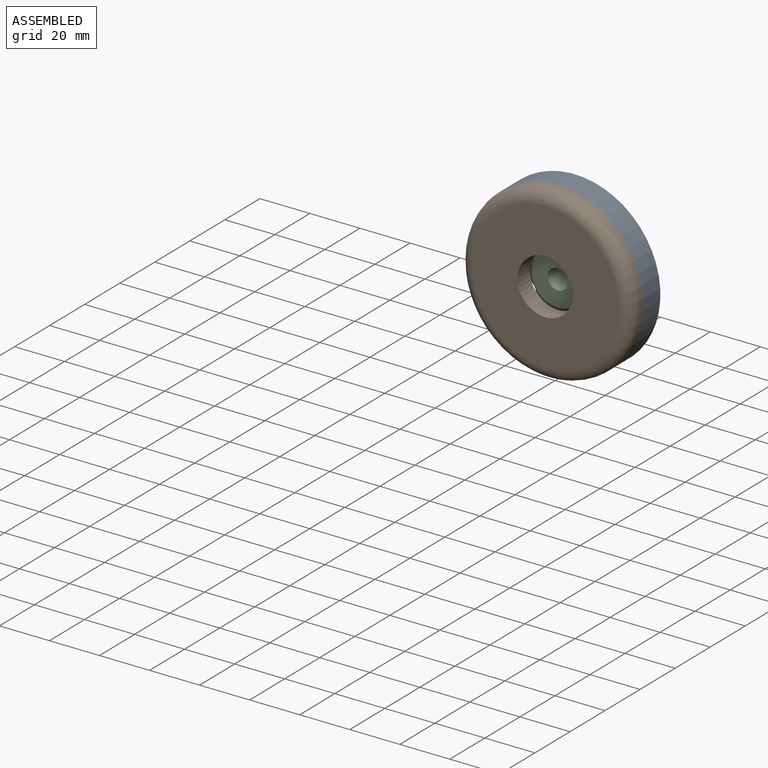
[diagram: assembled view]
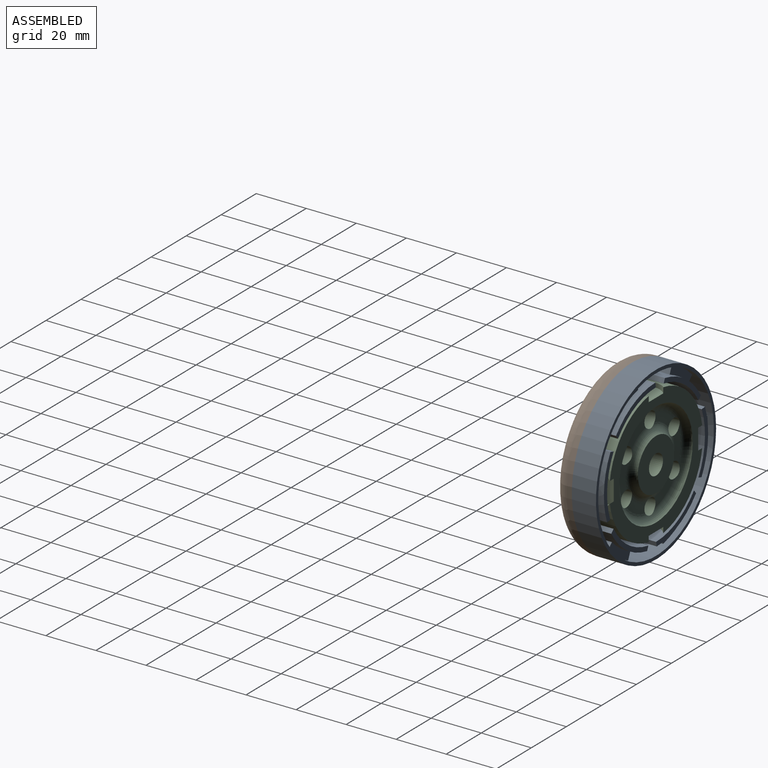
[diagram: assembled view, second angle]
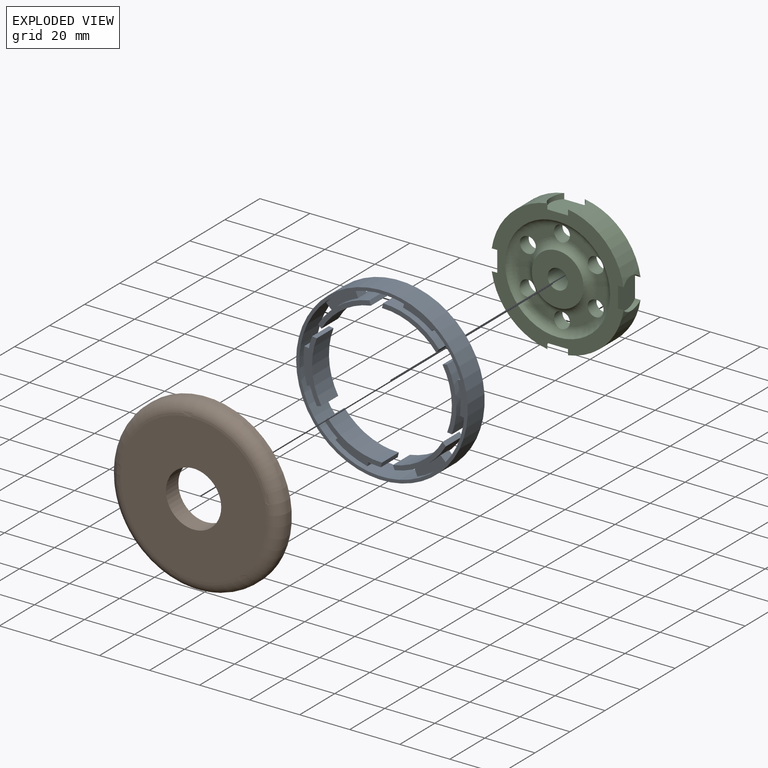
[diagram: exploded view]
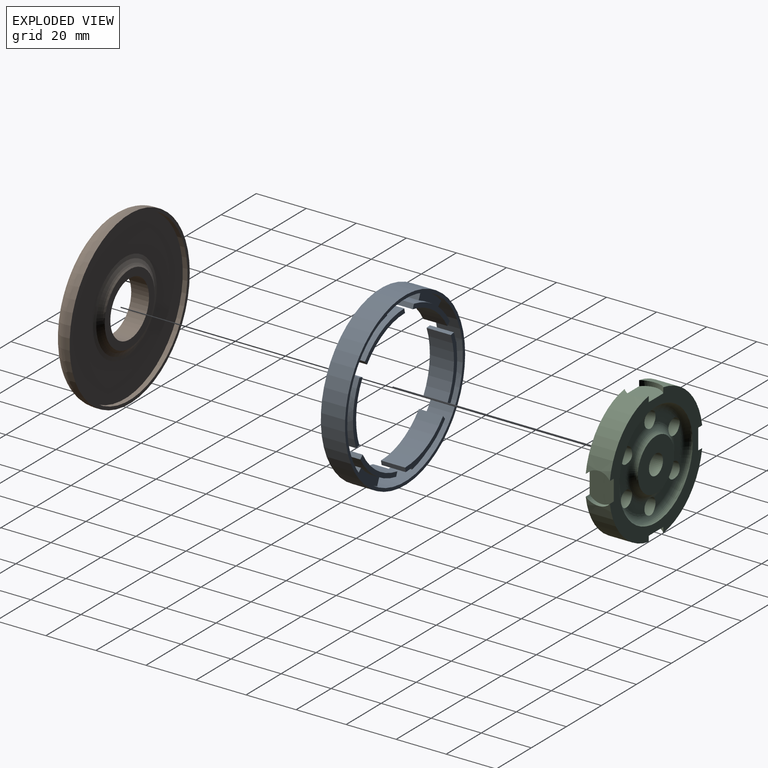
[diagram: exploded view, second angle]
ASSEMBLY  parts=3 mates=3
PART A: 64 faces, bbox 68.6x9.7x68.6 mm
  f0: plane 9.65x1.37mm, normal (-0.67,0,0.74), area 17.9mm2, adj f32,f49,f50,f60
  f1: plane 9.65x1.77mm, normal (0.3,0,0.95), area 17.9mm2, adj f36,f51,f52,f61
  f2: plane 9.65x1.81mm, normal (0.98,0,0.21), area 17.9mm2, adj f41,f53,f54,f62
  f3: plane 9.65x1.37mm, normal (0.67,0,-0.74), area 17.9mm2, adj f20,f55,f56,f63
  f4: plane 9.65x1.77mm, normal (-0.3,0,-0.95), area 17.9mm2, adj f24,f45,f46,f58
  f5: plane 9.65x1.81mm, normal (-0.98,0,-0.21), area 17.9mm2, adj f28,f47,f48,f59
  f6: plane 13.2x9.47mm, normal (0,1,0), area 44.2mm2, adj f19,f22,f39,f55
  f7: plane 14.1x3.96mm, normal (0,1,0), area 44.2mm2, adj f18,f39,f40,f53
  f8: plane 13.2x9.47mm, normal (0,1,0), area 44.2mm2, adj f35,f38,f39,f51
  f9: plane 13.2x9.47mm, normal (0,1,0), area 44.2mm2, adj f31,f34,f39,f49
  f10: plane 14.1x3.96mm, normal (0,1,0), area 44.2mm2, adj f27,f30,f39,f47
  f11: plane 13.2x9.47mm, normal (0,1,0), area 44.2mm2, adj f23,f26,f39,f45
  f12: plane 13.2x9.47mm, normal (0,-1,0), area 44.2mm2, adj f19,f22,f39,f55
  f13: plane 14.1x3.96mm, normal (0,-1,0), area 44.2mm2, adj f18,f39,f40,f53
  f14: plane 13.2x9.47mm, normal (0,-1,0), area 44.2mm2, adj f35,f38,f39,f51
  f15: plane 13.2x9.47mm, normal (0,-1,0), area 44.2mm2, adj f31,f34,f39,f49
  f16: plane 14.1x3.96mm, normal (0,-1,0), area 44.2mm2, adj f27,f30,f39,f47
  f17: plane 13.2x9.47mm, normal (0,-1,0), area 44.2mm2, adj f23,f26,f39,f45
  f18: plane 4.83x3.2mm, normal (-0.98,0,0.21), area 15.8mm2, adj f7,f13,f39,f53
  f19: plane 4.83x2.42mm, normal (0.67,0,-0.74), area 15.8mm2, adj f6,f12,f39,f55
  f20: cylinder r=27.94mm len=20.8mm, axis (0,1,0), area 239.7mm2, adj f3,f21,f56,f63
  f21: plane 9.65x1.77mm, normal (-0.3,0,0.95), area 17.9mm2, adj f20,f55,f56,f63
  f22: plane 4.83x3.12mm, normal (-0.3,0,0.95), area 15.8mm2, adj f6,f12,f39,f55
  f23: plane 4.83x3.12mm, normal (-0.3,0,-0.95), area 15.8mm2, adj f11,f17,f39,f45
  f24: cylinder r=27.94mm len=20.8mm, axis (0,1,0), area 239.7mm2, adj f4,f25,f46,f58
  f25: plane 9.65x1.37mm, normal (0.67,0,0.74), area 17.9mm2, adj f24,f45,f46,f58
  f26: plane 4.83x2.42mm, normal (0.67,0,0.74), area 15.8mm2, adj f11,f17,f39,f45
  f27: plane 4.83x3.2mm, normal (-0.98,0,-0.21), area 15.8mm2, adj f10,f16,f39,f47
  f28: cylinder r=27.94mm len=24.02mm, axis (0,1,0), area 239.7mm2, adj f5,f29,f48,f59
  f29: plane 9.65x1.81mm, normal (0.98,0,-0.21), area 17.9mm2, adj f28,f47,f48,f59
  f30: plane 4.83x3.2mm, normal (0.98,0,-0.21), area 15.8mm2, adj f10,f16,f39,f47
  f31: plane 4.83x2.42mm, normal (-0.67,0,0.74), area 15.8mm2, adj f9,f15,f39,f49
  f32: cylinder r=27.94mm len=20.8mm, axis (0,1,0), area 239.7mm2, adj f0,f33,f50,f60
  f33: plane 9.65x1.77mm, normal (0.3,0,-0.95), area 17.9mm2, adj f32,f49,f50,f60
  f34: plane 4.83x3.12mm, normal (0.3,0,-0.95), area 15.8mm2, adj f9,f15,f39,f49
  f35: plane 4.83x3.12mm, normal (0.3,0,0.95), area 15.8mm2, adj f8,f14,f39,f51
  f36: cylinder r=27.94mm len=20.8mm, axis (0,1,0), area 239.7mm2, adj f1,f37,f52,f61
  f37: plane 9.65x1.37mm, normal (-0.67,0,-0.74), area 17.9mm2, adj f36,f51,f52,f61
  f38: plane 4.83x2.42mm, normal (-0.67,0,-0.74), area 15.8mm2, adj f8,f14,f39,f51
  f39: cylinder r=33.02mm len=66.04mm, axis (0,1,0), area 1591.2mm2, adj f6,f7,f8,f9,f10,f11,f12,f13
  f40: plane 4.83x3.2mm, normal (0.98,0,0.21), area 15.8mm2, adj f7,f13,f39,f53
  f41: cylinder r=27.94mm len=24.02mm, axis (0,1,0), area 239.7mm2, adj f2,f42,f54,f62
  f42: plane 9.65x1.81mm, normal (-0.98,0,0.21), area 17.9mm2, adj f41,f53,f54,f62
  f43: cylinder r=34.29mm len=68.58mm, axis (0,1,0), area 2079.5mm2, adj f44,f57
  f44: plane 68.58x68.58mm, normal (0,-1,0), area 268.6mm2, adj f39,f43
  f45: cylinder r=29.75mm len=21.49mm, axis (0,1,0), area 185.3mm2, adj f4,f11,f17,f23,f25,f26,f46,f58
  f46: plane 22.05x13.78mm, normal (0,-1,0), area 45.6mm2, adj f4,f24,f25,f45
  f47: cylinder r=29.75mm len=24.81mm, axis (0,1,0), area 185.3mm2, adj f5,f10,f16,f27,f29,f30,f48,f59
  f48: plane 24.81x4.52mm, normal (0,-1,0), area 45.6mm2, adj f5,f28,f29,f47
  f49: cylinder r=29.75mm len=21.49mm, axis (0,1,0), area 185.3mm2, adj f0,f9,f15,f31,f33,f34,f50,f60
  f50: plane 22.05x13.78mm, normal (0,-1,0), area 45.6mm2, adj f0,f32,f33,f49
  f51: cylinder r=29.75mm len=21.49mm, axis (0,1,0), area 185.3mm2, adj f1,f8,f14,f35,f37,f38,f52,f61
  f52: plane 22.05x13.78mm, normal (0,-1,0), area 45.6mm2, adj f1,f36,f37,f51
  f53: cylinder r=29.75mm len=24.81mm, axis (0,1,0), area 185.3mm2, adj f2,f7,f13,f18,f40,f42,f54,f62
  f54: plane 24.81x4.52mm, normal (0,-1,0), area 45.6mm2, adj f2,f41,f42,f53
  f55: cylinder r=29.75mm len=21.49mm, axis (0,1,0), area 185.3mm2, adj f3,f6,f12,f19,f21,f22,f56,f63
  f56: plane 22.05x13.78mm, normal (0,-1,0), area 45.6mm2, adj f3,f20,f21,f55
  f57: plane 68.58x68.58mm, normal (0,1,0), area 268.6mm2, adj f39,f43
  f58: plane 22.05x13.78mm, normal (0,1,0), area 45.6mm2, adj f4,f24,f25,f45
  f59: plane 24.81x4.52mm, normal (0,1,0), area 45.6mm2, adj f5,f28,f29,f47
  f60: plane 22.05x13.78mm, normal (0,1,0), area 45.6mm2, adj f0,f32,f33,f49
  f61: plane 22.05x13.78mm, normal (0,1,0), area 45.6mm2, adj f1,f36,f37,f51
  f62: plane 24.81x4.52mm, normal (0,1,0), area 45.6mm2, adj f2,f41,f42,f53
  f63: plane 22.05x13.78mm, normal (0,1,0), area 45.6mm2, adj f3,f20,f21,f55
PART B: 9 faces, bbox 74.2x10.3x74.2 mm
  f0: cylinder r=33.02mm len=66.04mm, axis (0,1,0), area 395.2mm2, adj f2,f5
  f1: cylinder r=34.29mm len=68.58mm, axis (0,1,0), area 437.8mm2, adj f2,f7
  f2: plane 68.58x68.58mm, normal (0,1,0), area 268.6mm2, adj f0,f1
  f3: cylinder r=11.05mm len=22.1mm, axis (0,1,0), area 493.7mm2, adj f4,f6
  f4: plane 58.42x58.42mm, normal (0,-1,0), area 2297mm2, adj f3,f7
  f5: plane 66.04x66.04mm, normal (0,1,0), area 2385.9mm2, adj f0,f8
  f6: plane 28.45x28.45mm, normal (0,1,0), area 252.1mm2, adj f3,f8
  f7: torus R=29.21mm, axis (0,-1,0), area 1626.7mm2, adj f1,f4
  f8: torus R=18.19mm, axis (0,-1,0), area 459.2mm2, adj f5,f6
PART C: 43 faces, bbox 52.7x12.4x52.7 mm
  f0: plane 11.01x8.2mm, normal (0,-1,0), area 36.5mm2, adj f37,f38,f41,f42
  f1: plane 12.37x4.33mm, normal (0,-1,0), area 36.5mm2, adj f36,f37,f41,f42
  f2: plane 11.01x8.2mm, normal (0,-1,0), area 36.5mm2, adj f35,f36,f41,f42
  f3: plane 11.01x8.2mm, normal (0,-1,0), area 36.5mm2, adj f34,f35,f41,f42
  f4: plane 12.37x4.33mm, normal (0,-1,0), area 36.5mm2, adj f33,f34,f41,f42
  f5: plane 11.01x8.2mm, normal (0,1,0), area 36.5mm2, adj f35,f36,f39,f40
  f6: plane 12.37x4.33mm, normal (0,1,0), area 36.5mm2, adj f36,f37,f39,f40
  f7: plane 11.01x8.2mm, normal (0,1,0), area 36.5mm2, adj f37,f38,f39,f40
  f8: plane 11.01x8.2mm, normal (0,1,0), area 36.5mm2, adj f33,f38,f39,f40
  f9: plane 12.37x4.33mm, normal (0,1,0), area 36.5mm2, adj f33,f34,f39,f40
  f10: plane 20.7x20.7mm, normal (0,1,0), area 286.3mm2, adj f30,f39
  f11: plane 20.7x20.7mm, normal (0,-1,0), area 286.3mm2, adj f30,f41
  f12: cylinder r=26.67mm len=22.22mm, axis (0,1,0), area 294mm2, adj f16,f17,f24,f29
  f13: cylinder r=26.67mm len=22.22mm, axis (0,1,0), area 294mm2, adj f16,f17,f21,f26
  f14: cylinder r=26.67mm len=22.22mm, axis (0,1,0), area 294mm2, adj f16,f17,f18,f23
  f15: cylinder r=26.67mm len=22.22mm, axis (0,1,0), area 294mm2, adj f16,f17,f20,f27
  f16: plane 52.7x52.7mm, normal (0,-1,0), area 774.7mm2, adj f12,f13,f14,f15,f18,f19,f20,f21
  f17: plane 52.7x52.7mm, normal (0,1,0), area 774.7mm2, adj f12,f13,f14,f15,f18,f19,f20,f21
  f18: cylinder r=6.35mm len=9.65mm, axis (0,0,1), area 21.3mm2, adj f14,f16,f17,f19
  f19: plane 12.7x9.65mm, normal (0,0,1), area 109.5mm2, adj f16,f17,f18,f20
  f20: cylinder r=6.35mm len=9.65mm, axis (0,0,1), area 21.3mm2, adj f15,f16,f17,f19
  f21: cylinder r=6.35mm len=9.65mm, axis (1,0,0), area 21.3mm2, adj f13,f16,f17,f22
  f22: plane 12.7x9.65mm, normal (1,0,0), area 109.5mm2, adj f16,f17,f21,f23
  f23: cylinder r=6.35mm len=9.65mm, axis (1,0,0), area 21.3mm2, adj f14,f16,f17,f22
  f24: cylinder r=6.35mm len=9.65mm, axis (0,0,-1), area 21.3mm2, adj f12,f16,f17,f25
  f25: plane 12.7x9.65mm, normal (0,0,-1), area 109.5mm2, adj f16,f17,f24,f26
  f26: cylinder r=6.35mm len=9.65mm, axis (0,0,-1), area 21.3mm2, adj f13,f16,f17,f25
  f27: cylinder r=6.35mm len=9.65mm, axis (-1,0,0), area 21.3mm2, adj f15,f16,f17,f28
  f28: plane 12.7x9.65mm, normal (-1,0,0), area 109.5mm2, adj f16,f17,f27,f29
  f29: cylinder r=6.35mm len=9.65mm, axis (-1,0,0), area 21.3mm2, adj f12,f16,f17,f28
  f30: cylinder r=4mm len=9.65mm, axis (0,-1,0), area 242.6mm2, adj f10,f11
  f31: plane 11.01x8.2mm, normal (0,-1,0), area 36.5mm2, adj f33,f38,f41,f42
  f32: plane 11.01x8.2mm, normal (0,1,0), area 36.5mm2, adj f34,f35,f39,f40
  f33: cylinder r=3.17mm len=6.35mm, axis (0,-1,0), area 99.8mm2, adj f4,f8,f9,f31,f39,f40,f41,f42
  f34: cylinder r=3.17mm len=6.35mm, axis (0,-1,0), area 99.8mm2, adj f3,f4,f9,f32,f39,f40,f41,f42
  f35: cylinder r=3.17mm len=6.35mm, axis (0,-1,0), area 99.8mm2, adj f2,f3,f5,f32,f39,f40,f41,f42
  f36: cylinder r=3.17mm len=6.35mm, axis (0,-1,0), area 99.8mm2, adj f1,f2,f5,f6,f39,f40,f41,f42
  f37: cylinder r=3.17mm len=6.35mm, axis (0,-1,0), area 99.8mm2, adj f0,f1,f6,f7,f39,f40,f41,f42
  f38: cylinder r=3.17mm len=6.35mm, axis (0,-1,0), area 99.8mm2, adj f0,f7,f8,f31,f39,f40,f41,f42
  f39: torus R=13.89mm, axis (0,1,0), area 310.1mm2, adj f5,f6,f7,f8,f9,f10,f32,f33
  f40: torus R=17.41mm, axis (0,-1,0), area 521.5mm2, adj f5,f6,f7,f8,f9,f17,f32,f33
  f41: torus R=13.89mm, axis (0,-1,0), area 310.1mm2, adj f0,f1,f2,f3,f4,f11,f31,f33
  f42: torus R=17.41mm, axis (0,1,0), area 521.5mm2, adj f0,f1,f2,f3,f4,f16,f31,f33
PLACE A rot(axis=(0,1,0),25.5deg) t=(-0.32,-13.22,0.97)mm
PLACE B rot(axis=(0,1,0),25.5deg) t=(-0.32,-18.05,0.97)mm
PLACE C t=(-0.32,-13.22,0.97)mm fixed
MATE planar C.f12 <-> A.f20  axis (0,-1,0) through (-0.32,-18.05,0.97)mm
MATE fastened A.f20 <-> B.f0  axis (0,-1,0) through (-0.32,-18.05,0.97)mm
MATE cylindrical C.f12 <-> A.f20  axis (0,-1,0) through (-0.32,-18.05,0.97)mm
